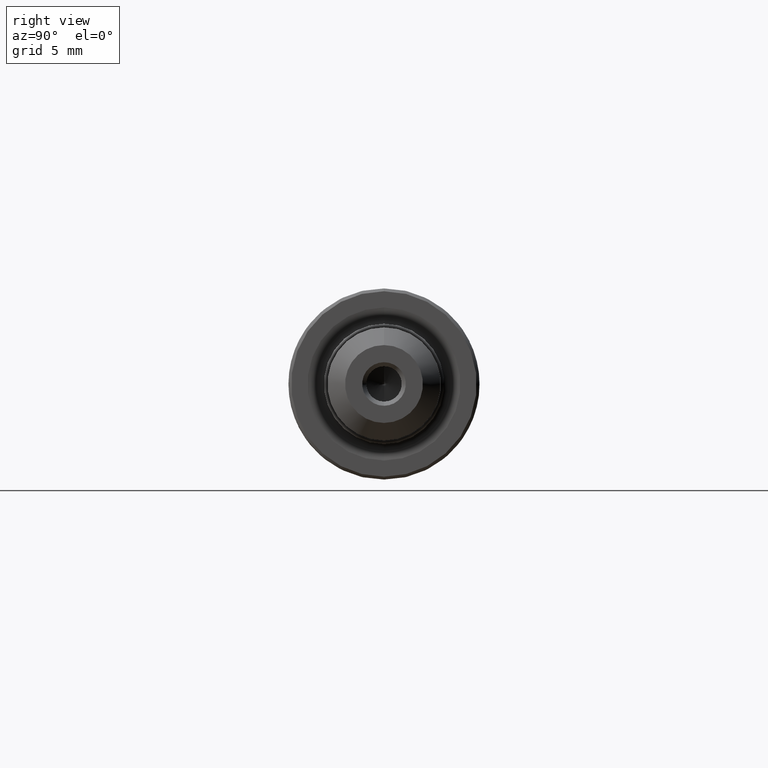
[diagram: clean part render]
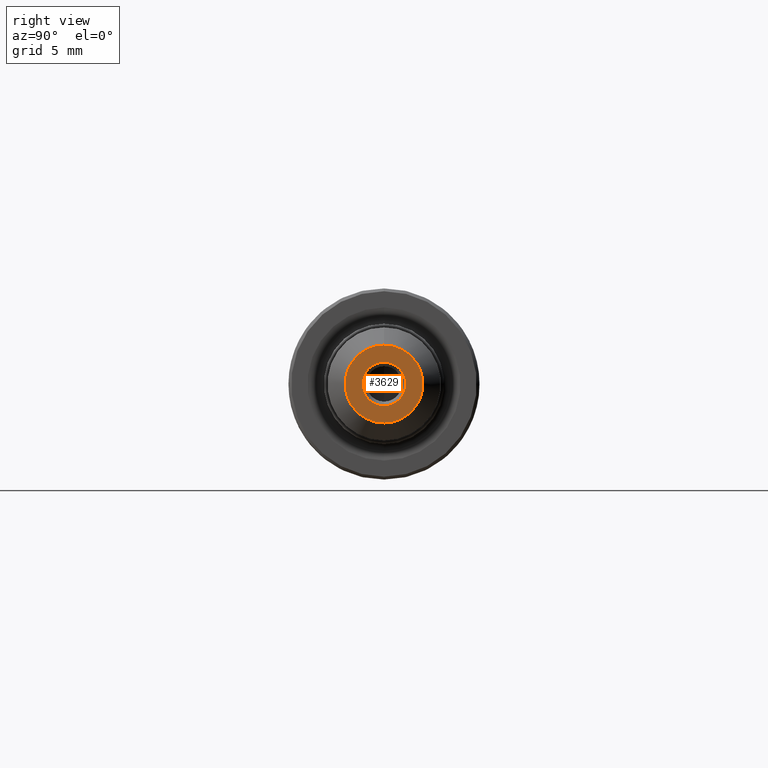
[diagram: same view with one face highlighted and labeled with its STEP entity id]
A machine part, right view. The second image highlights one B-rep face of the part: STEP entity #3629.
In plain terms, the highlighted planar face has unit normal (-1, 0, -0).
Its self-contained STEP definition (entity closure, byte-faithful):
#223 = DIRECTION ( 'NONE',  ( -0.0000000000000000000, 0.0000000000000000000, 1.000000000000000000 ) ) ;
#253 = AXIS2_PLACEMENT_3D ( 'NONE', #3578, #591, #223 ) ;
#254 = CARTESIAN_POINT ( 'NONE',  ( 48.31688218000000035, 4.133182947122308785E-16, -2.749999999999986233 ) ) ;
#440 = AXIS2_PLACEMENT_3D ( 'NONE', #797, #3024, #1711 ) ;
#571 = DIRECTION ( 'NONE',  ( 0.0000000000000000000, 0.0000000000000000000, 1.000000000000000000 ) ) ;
#587 = EDGE_CURVE ( 'NONE', #1755, #2128, #627, .T. ) ;
#591 = DIRECTION ( 'NONE',  ( -1.000000000000000000, 0.0000000000000000000, -0.0000000000000000000 ) ) ;
#609 = FACE_BOUND ( 'NONE', #2446, .T. ) ;
#627 = CIRCLE ( 'NONE', #2900, 1.538675134594809313 ) ;
#637 = CIRCLE ( 'NONE', #3671, 1.538675134594809313 ) ;
#797 = CARTESIAN_POINT ( 'NONE',  ( 48.31688218000000035, 0.0000000000000000000, 0.0000000000000000000 ) ) ;
#903 = EDGE_CURVE ( 'NONE', #3575, #2419, #2907, .T. ) ;
#1016 = DIRECTION ( 'NONE',  ( 0.0000000000000000000, 0.0000000000000000000, 1.000000000000000000 ) ) ;
#1125 = CARTESIAN_POINT ( 'NONE',  ( 48.31688218000000035, 0.0000000000000000000, 2.749999999999986233 ) ) ;
#1303 = EDGE_CURVE ( 'NONE', #2419, #3575, #2784, .T. ) ;
#1330 = DIRECTION ( 'NONE',  ( -1.000000000000000000, -0.0000000000000000000, -0.0000000000000000000 ) ) ;
#1365 = EDGE_CURVE ( 'NONE', #2128, #1755, #637, .T. ) ;
#1673 = DIRECTION ( 'NONE',  ( 0.0000000000000000000, 0.0000000000000000000, 1.000000000000000000 ) ) ;
#1711 = DIRECTION ( 'NONE',  ( 0.0000000000000000000, 0.0000000000000000000, 1.000000000000000000 ) ) ;
#1755 = VERTEX_POINT ( 'NONE', #3813 ) ;
#1759 = PLANE ( 'NONE',  #253 ) ;
#1941 = CARTESIAN_POINT ( 'NONE',  ( 48.31688218000000035, 0.0000000000000000000, 0.0000000000000000000 ) ) ;
#2079 = CARTESIAN_POINT ( 'NONE',  ( 48.31688218000000035, 0.0000000000000000000, 0.0000000000000000000 ) ) ;
#2119 = FACE_OUTER_BOUND ( 'NONE', #3922, .T. ) ;
#2128 = VERTEX_POINT ( 'NONE', #3508 ) ;
#2251 = ORIENTED_EDGE ( 'NONE', *, *, #903, .F. ) ;
#2314 = ORIENTED_EDGE ( 'NONE', *, *, #587, .T. ) ;
#2419 = VERTEX_POINT ( 'NONE', #254 ) ;
#2446 = EDGE_LOOP ( 'NONE', ( #2865, #2314 ) ) ;
#2599 = DIRECTION ( 'NONE',  ( -1.000000000000000000, -0.0000000000000000000, -0.0000000000000000000 ) ) ;
#2784 = CIRCLE ( 'NONE', #3031, 2.749999999999986233 ) ;
#2832 = CARTESIAN_POINT ( 'NONE',  ( 48.31688218000000035, 0.0000000000000000000, 0.0000000000000000000 ) ) ;
#2865 = ORIENTED_EDGE ( 'NONE', *, *, #1365, .T. ) ;
#2900 = AXIS2_PLACEMENT_3D ( 'NONE', #2832, #1330, #1016 ) ;
#2907 = CIRCLE ( 'NONE', #440, 2.749999999999986233 ) ;
#3024 = DIRECTION ( 'NONE',  ( -1.000000000000000000, -0.0000000000000000000, -0.0000000000000000000 ) ) ;
#3031 = AXIS2_PLACEMENT_3D ( 'NONE', #2079, #3266, #571 ) ;
#3263 = ORIENTED_EDGE ( 'NONE', *, *, #1303, .F. ) ;
#3266 = DIRECTION ( 'NONE',  ( -1.000000000000000000, -0.0000000000000000000, -0.0000000000000000000 ) ) ;
#3508 = CARTESIAN_POINT ( 'NONE',  ( 48.31688218000000035, 0.0000000000000000000, -1.538675134594809313 ) ) ;
#3575 = VERTEX_POINT ( 'NONE', #1125 ) ;
#3578 = CARTESIAN_POINT ( 'NONE',  ( 48.31688218000000035, 2.749999999999986233, 0.0000000000000000000 ) ) ;
#3629 = ADVANCED_FACE ( 'NONE', ( #2119, #609 ), #1759, .F. ) ;
#3671 = AXIS2_PLACEMENT_3D ( 'NONE', #1941, #2599, #1673 ) ;
#3813 = CARTESIAN_POINT ( 'NONE',  ( 48.31688218000000035, 1.884333578509156023E-16, 1.538675134594809313 ) ) ;
#3922 = EDGE_LOOP ( 'NONE', ( #2251, #3263 ) ) ;